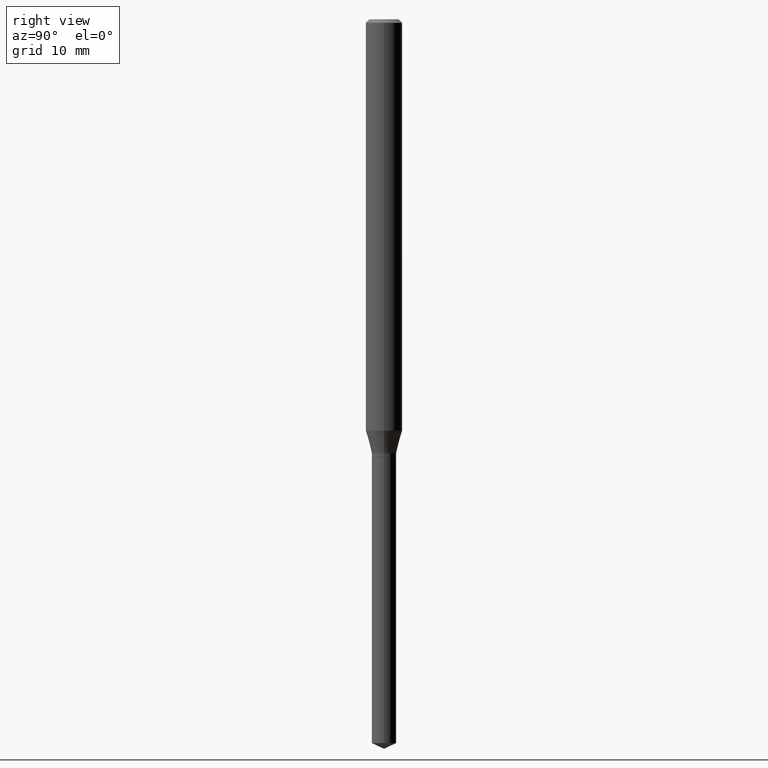
[diagram: clean part render]
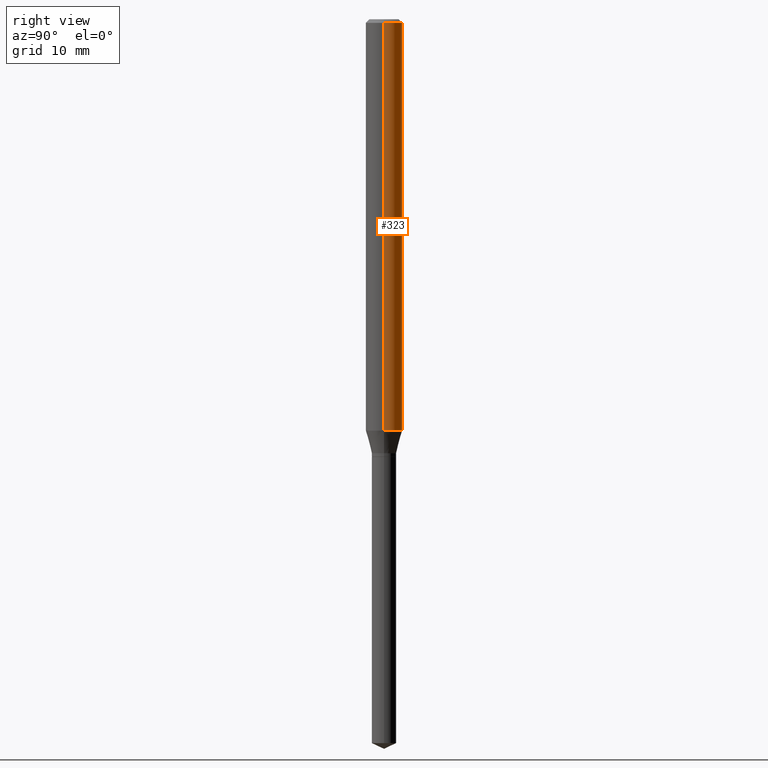
[diagram: same view with one face highlighted and labeled with its STEP entity id]
A machine part, right view. The second image highlights one B-rep face of the part: STEP entity #323.
In plain terms, the highlighted cylindrical surface (edge-blend (fillet) strip) has radius 1.4999 mm, axis along (-0, 0, 1).
Its self-contained STEP definition (entity closure, byte-faithful):
#18 = CARTESIAN_POINT ( 'NONE',  ( 0.05904999999999999832, -4.535783407291118600E-16, -0.01181000000000007218 ) ) ;
#39 = EDGE_CURVE ( 'NONE', #349, #328, #200, .T. ) ;
#57 = CARTESIAN_POINT ( 'NONE',  ( 0.000000000000000000, 0.000000000000000000, 0.000000000000000000 ) ) ;
#78 = CARTESIAN_POINT ( 'NONE',  ( 0.05905000000000015098, -5.062224072313895982E-15, -1.331778599090893245 ) ) ;
#83 = EDGE_CURVE ( 'NONE', #383, #328, #166, .T. ) ;
#93 = VECTOR ( 'NONE', #309, 39.37007874015748143 ) ;
#102 = ORIENTED_EDGE ( 'NONE', *, *, #461, .T. ) ;
#104 = AXIS2_PLACEMENT_3D ( 'NONE', #242, #203, #353 ) ;
#139 = ORIENTED_EDGE ( 'NONE', *, *, #83, .T. ) ;
#166 = LINE ( 'NONE', #280, #444 ) ;
#173 = CARTESIAN_POINT ( 'NONE',  ( -0.05905000000000015098, -4.230304640730180780E-15, -1.331778599090893245 ) ) ;
#185 = CIRCLE ( 'NONE', #104, 0.05905000000000015098 ) ;
#195 = CYLINDRICAL_SURFACE ( 'NONE', #422, 0.05905000000000007465 ) ;
#200 = CIRCLE ( 'NONE', #432, 0.05904999999999999832 ) ;
#203 = DIRECTION ( 'NONE',  ( -2.445468806185136597E-29, 3.491481338843145583E-15, 1.000000000000000000 ) ) ;
#216 = VERTEX_POINT ( 'NONE', #78 ) ;
#228 = ORIENTED_EDGE ( 'NONE', *, *, #327, .F. ) ;
#232 = CARTESIAN_POINT ( 'NONE',  ( 0.05905000000000007465, -4.123439461173745750E-16, 2.879382386107504074E-30 ) ) ;
#242 = CARTESIAN_POINT ( 'NONE',  ( 3.256823020821720697E-29, -4.649880126196521062E-15, -1.331778599090893245 ) ) ;
#280 = CARTESIAN_POINT ( 'NONE',  ( -0.05905000000000007465, 4.195754854663396902E-16, -2.904631170795525395E-30 ) ) ;
#306 = DIRECTION ( 'NONE',  ( -2.445468806185136597E-29, 3.491481338843145583E-15, 1.000000000000000000 ) ) ;
#308 = CARTESIAN_POINT ( 'NONE',  ( 2.888098660104664204E-31, -4.123439461173780263E-17, -0.01181000000000007218 ) ) ;
#309 = DIRECTION ( 'NONE',  ( -2.445468806185136877E-29, 3.491481338843145188E-15, 1.000000000000000000 ) ) ;
#313 = CARTESIAN_POINT ( 'NONE',  ( -0.05904999999999999832, -1.925981774937789113E-15, -0.01181000000000007218 ) ) ;
#315 = DIRECTION ( 'NONE',  ( -2.445468806185136877E-29, 3.491481338843145188E-15, 1.000000000000000000 ) ) ;
#323 = ADVANCED_FACE ( 'NONE', ( #343 ), #195, .T. ) ;
#327 = EDGE_CURVE ( 'NONE', #216, #349, #350, .T. ) ;
#328 = VERTEX_POINT ( 'NONE', #313 ) ;
#343 = FACE_OUTER_BOUND ( 'NONE', #446, .T. ) ;
#349 = VERTEX_POINT ( 'NONE', #18 ) ;
#350 = LINE ( 'NONE', #232, #93 ) ;
#353 = DIRECTION ( 'NONE',  ( 1.000000000000000000, -6.982962677686271444E-15, 0.000000000000000000 ) ) ;
#383 = VERTEX_POINT ( 'NONE', #173 ) ;
#404 = ORIENTED_EDGE ( 'NONE', *, *, #39, .F. ) ;
#422 = AXIS2_PLACEMENT_3D ( 'NONE', #57, #474, #437 ) ;
#432 = AXIS2_PLACEMENT_3D ( 'NONE', #308, #306, #455 ) ;
#437 = DIRECTION ( 'NONE',  ( 1.000000000000000000, -6.982962677686266711E-15, 4.876176775795936353E-29 ) ) ;
#444 = VECTOR ( 'NONE', #315, 39.37007874015748143 ) ;
#446 = EDGE_LOOP ( 'NONE', ( #102, #139, #404, #228 ) ) ;
#455 = DIRECTION ( 'NONE',  ( 1.000000000000000000, -6.982962677686266711E-15, 0.000000000000000000 ) ) ;
#461 = EDGE_CURVE ( 'NONE', #216, #383, #185, .T. ) ;
#474 = DIRECTION ( 'NONE',  ( -2.445468806185136597E-29, 3.491481338843145583E-15, 1.000000000000000000 ) ) ;